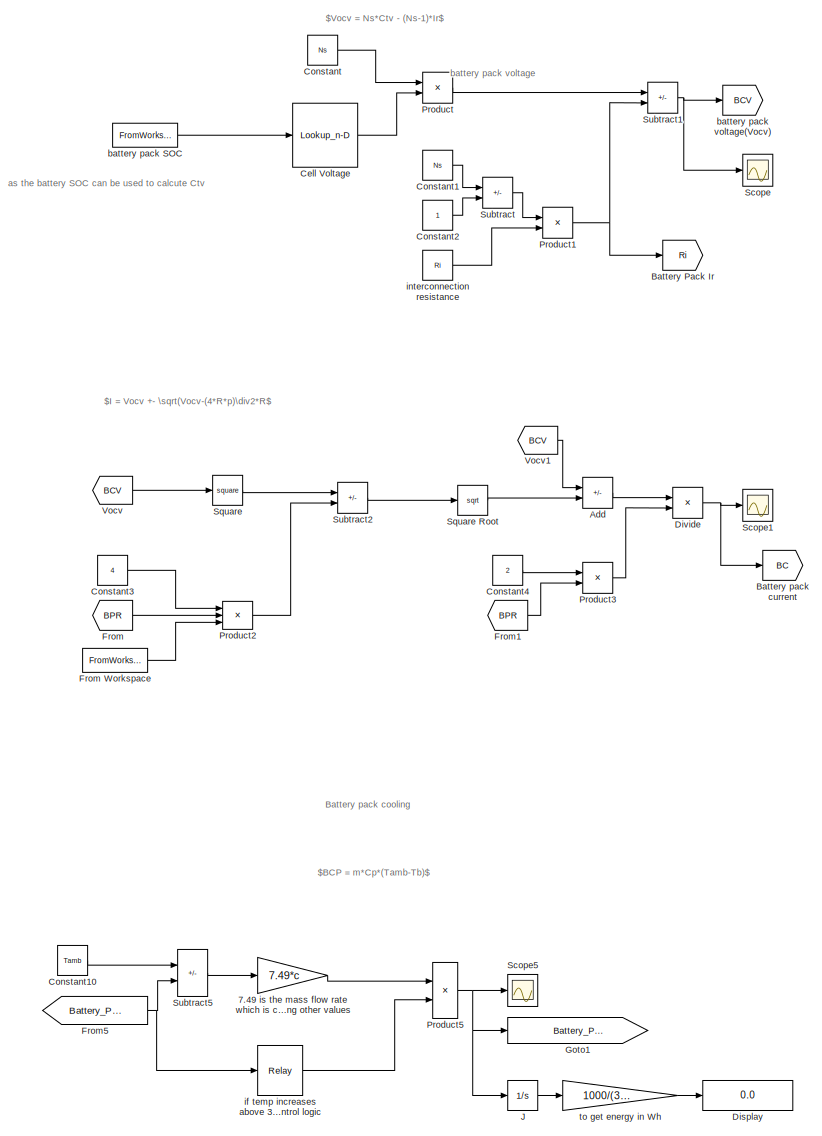
[diagram: root canvas - part 1/2, left side, full height]
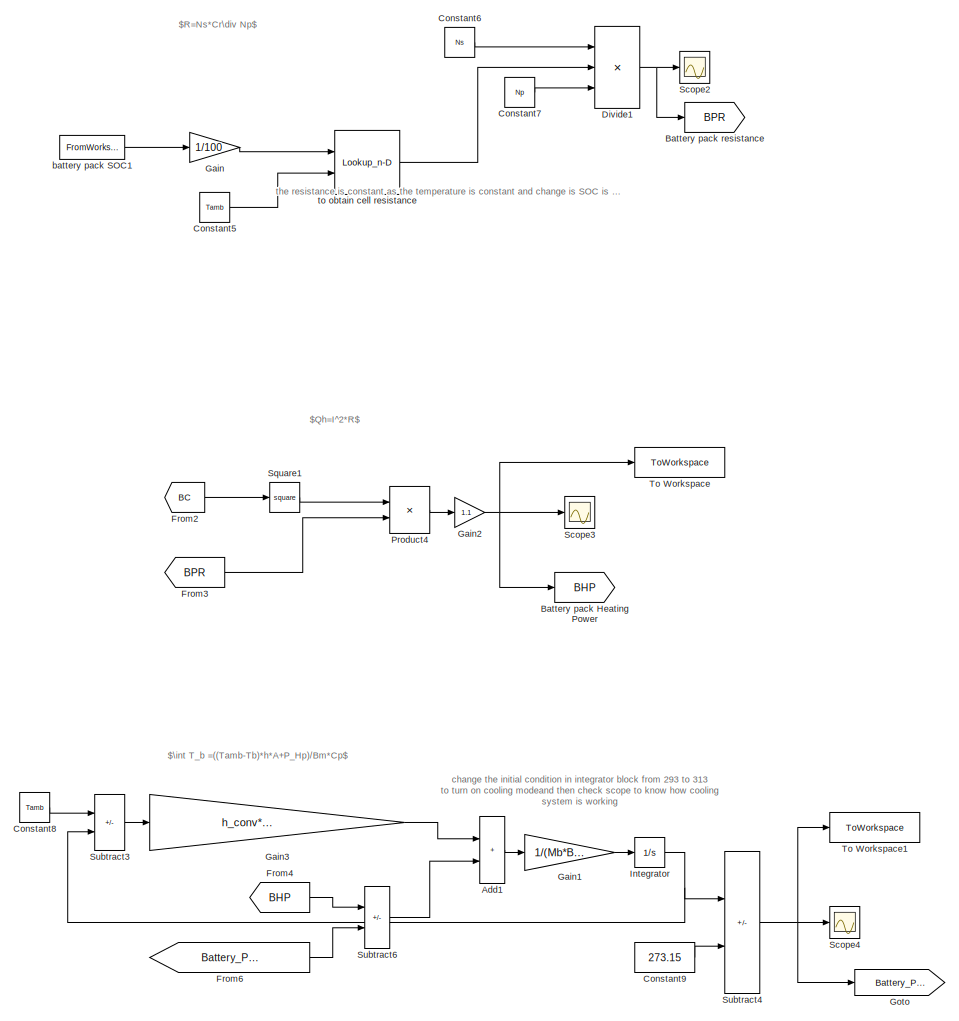
[diagram: root canvas - part 2/2, right side, full height]
MODEL slx_933a099b8f6e
KIND model
CONFIG AbsTol = auto
CONFIG EnableMultiTasking = off
CONFIG FixedStep = 1
CONFIG MaxStep = auto
CONFIG MinStep = auto
CONFIG RelTol = 1e-3
CONFIG SampleTimeConstraint = Unconstrained
CONFIG SolverName = FixedStepAuto
CONFIG StartTime = 0.0
CONFIG StopTime = 1400
BLOCK [Gain] 7.49 is the mass flow rate which is calculated by taking bcp =bhp*1.1 and putting other values
  Gain = 7.49*c
BLOCK [Sum] Add
  IconShape = rectangular
  Inputs = +-
  Ports = [2, 1]
BLOCK [Sum] Add1
  IconShape = rectangular
  Ports = [2, 1]
BLOCK [Goto] Battery Pack Ir
  GotoTag = Ri
  TagVisibility = global
BLOCK [Goto] Battery pack Heating Power
  GotoTag = BHP
  TagVisibility = global
BLOCK [Goto] Battery pack current
  GotoTag = BC
  TagVisibility = global
BLOCK [Goto] Battery pack resistance
  GotoTag = BPR
  TagVisibility = global
BLOCK [Lookup_n-D] Cell Voltage 
  BreakpointsForDimension1 = Cell_Voltage( :,2)
  InputPortMap = u0
  InternalRulePriority = Speed
  NumberOfTableDimensions = 1
  Ports = [1, 1]
  RndMeth = Simplest
  Table = Cell_Voltage( :,1)
BLOCK [Constant] Constant
  Value = Ns
BLOCK [Constant] Constant1
  Value = Ns
BLOCK [Constant] Constant10
  Value = Tamb
BLOCK [Constant] Constant2
BLOCK [Constant] Constant3
  Value = 4
BLOCK [Constant] Constant4
  Value = 2
BLOCK [Constant] Constant5
  Value = Tamb
BLOCK [Constant] Constant6
  Value = Ns
BLOCK [Constant] Constant7
  Value = Np
BLOCK [Constant] Constant8
  Value = Tamb
BLOCK [Constant] Constant9
  Value = 273.15
BLOCK [Display] Display
  Decimation = 1
  Ports = [1]
BLOCK [Product] Divide
  Inputs = */
  Ports = [2, 1]
BLOCK [Product] Divide1
  Inputs = **/
  Ports = [3, 1]
BLOCK [From] From
  GotoTag = BPR
  TagVisibility = global
BLOCK [FromWorkspace] From Workspace
  VariableName = Battery_Power
BLOCK [From] From1
  GotoTag = BPR
  TagVisibility = global
BLOCK [From] From2
  GotoTag = BC
  TagVisibility = global
BLOCK [From] From3
  GotoTag = BPR
  TagVisibility = global
BLOCK [From] From4
  GotoTag = BHP
  TagVisibility = global
BLOCK [From] From5
  GotoTag = Battery_Pack_temp
  TagVisibility = global
BLOCK [From] From6
  GotoTag = Battery_Pack_Cooling_Power
  TagVisibility = global
BLOCK [Gain] Gain
  Gain = 1/100
BLOCK [Gain] Gain1
  Gain = 1/(Mb*Bc)
BLOCK [Gain] Gain2
  Gain = 1.1
BLOCK [Gain] Gain3
  Gain = h_conv*(Cell_length*Cell_width*Ns*Np)
BLOCK [Goto] Goto
  GotoTag = Battery_Pack_temp
  TagVisibility = global
BLOCK [Goto] Goto1
  GotoTag = Battery_Pack_Cooling_Power
  TagVisibility = global
BLOCK [Integrator] Integrator
  InitialCondition = 313.17
  Ports = [1, 1]
BLOCK [Integrator] J
  Ports = [1, 1]
BLOCK [Product] Product
  Ports = [2, 1]
BLOCK [Product] Product1
  Ports = [2, 1]
BLOCK [Product] Product2
  Inputs = 3
  Ports = [3, 1]
BLOCK [Product] Product3
  Ports = [2, 1]
BLOCK [Product] Product4
  Ports = [2, 1]
BLOCK [Product] Product5
  Ports = [2, 1]
BLOCK [Scope] Scope
  Floating = off
  NumInputPorts = 1
  Ports = [1]
  ScopeSpecificationString = Simulink.scopes.TimeScopeBlockCfg('CurrentConfiguration', extmgr.ConfigurationSet(extmgr.Configuration('Core','General UI',true),extmgr.Configuration('Core','Source UI',true),extmgr.Configuration('Sources','WiredSimulink',true),extmgr.Configuration('Visuals','Time Domain',true,'SerializedDisplays',{struct('MinYLimReal','382.2695','MaxYLimReal','406.0295','YLabelReal','','MinYLimMag','382.2695','Ma...<+1335ch>
BLOCK [Scope] Scope1
  Floating = off
  NumInputPorts = 1
  Ports = [1]
  ScopeSpecificationString = Simulink.scopes.TimeScopeBlockCfg('CurrentConfiguration', extmgr.ConfigurationSet(extmgr.Configuration('Core','General UI',true),extmgr.Configuration('Core','Source UI',true),extmgr.Configuration('Sources','WiredSimulink',true,'DataLoggingVariableName','ScopeData1'),extmgr.Configuration('Visuals','Time Domain',true,'SerializedDisplays',{struct('MinYLimReal','-12.8996','MaxYLimReal','37.18602','YLa...<+1401ch>
BLOCK [Scope] Scope2
  Floating = off
  NumInputPorts = 1
  Ports = [1]
  ScopeSpecificationString = Simulink.scopes.TimeScopeBlockCfg('CurrentConfiguration', extmgr.ConfigurationSet(extmgr.Configuration('Core','General UI',true),extmgr.Configuration('Core','Source UI',true),extmgr.Configuration('Sources','WiredSimulink',true,'DataLoggingVariableName','ScopeData2'),extmgr.Configuration('Visuals','Time Domain',true,'SerializedDisplays',{struct('MinYLimReal','0.308','MaxYLimReal','0.508','YLabelRea...<+1348ch>
BLOCK [Scope] Scope3
  Floating = off
  NumInputPorts = 1
  Ports = [1]
  ScopeSpecificationString = Simulink.scopes.TimeScopeBlockCfg('CurrentConfiguration', extmgr.ConfigurationSet(extmgr.Configuration('Core','General UI',true),extmgr.Configuration('Core','Source UI',true),extmgr.Configuration('Sources','WiredSimulink',true,'DataLoggingVariableName','ScopeData3'),extmgr.Configuration('Visuals','Time Domain',true,'SerializedDisplays',{struct('MinYLimReal','-52.80484','MaxYLimReal','475.24353','Y...<+1407ch>
BLOCK [Scope] Scope4
  Floating = off
  NumInputPorts = 1
  Ports = [1]
  ScopeSpecificationString = Simulink.scopes.TimeScopeBlockCfg('CurrentConfiguration', extmgr.ConfigurationSet(extmgr.Configuration('Core','General UI',true),extmgr.Configuration('Core','Source UI',true),extmgr.Configuration('Sources','WiredSimulink',true,'DataLoggingVariableName','ScopeData4'),extmgr.Configuration('Visuals','Time Domain',true,'SerializedDisplays',{struct('MinYLimReal','15.35394','MaxYLimReal','42.76067','YLa...<+1404ch>
BLOCK [Scope] Scope5
  Floating = off
  NumInputPorts = 1
  Ports = [1]
  ScopeSpecificationString = Simulink.scopes.TimeScopeBlockCfg('CurrentConfiguration', extmgr.ConfigurationSet(extmgr.Configuration('Core','General UI',true),extmgr.Configuration('Core','Source UI',true),extmgr.Configuration('Sources','WiredSimulink',true,'DataLoggingVariableName','ScopeData1'),extmgr.Configuration('Visuals','Time Domain',true,'SerializedDisplays',{struct('MinYLimReal','-319940.49937','MaxYLimReal','2879464.4...<+1409ch>
BLOCK [Math] Square
  Operator = square
  Ports = [1, 1]
BLOCK [Sqrt] Square Root
BLOCK [Math] Square1
  Operator = square
  Ports = [1, 1]
BLOCK [Sum] Subtract
  IconShape = rectangular
  Inputs = +-
  Ports = [2, 1]
BLOCK [Sum] Subtract1
  IconShape = rectangular
  Inputs = +-
  Ports = [2, 1]
BLOCK [Sum] Subtract2
  IconShape = rectangular
  Inputs = +-
  Ports = [2, 1]
BLOCK [Sum] Subtract3
  IconShape = rectangular
  Inputs = +-
  Ports = [2, 1]
BLOCK [Sum] Subtract4
  IconShape = rectangular
  Inputs = +-
  Ports = [2, 1]
BLOCK [Sum] Subtract5
  IconShape = rectangular
  Inputs = +-
  Ports = [2, 1]
BLOCK [Sum] Subtract6
  IconShape = rectangular
  Inputs = +-
  Ports = [2, 1]
BLOCK [ToWorkspace] To Workspace
  FixptAsFi = on
  MaxDataPoints = inf
  Ports = [1]
  SampleTime = -1
  SaveFormat = Timeseries
  VariableName = BHP
BLOCK [ToWorkspace] To Workspace1
  FixptAsFi = on
  MaxDataPoints = inf
  Ports = [1]
  SampleTime = -1
  SaveFormat = Timeseries
  VariableName = BT
BLOCK [From] Vocv
  GotoTag = BCV
  TagVisibility = global
BLOCK [From] Vocv1
  GotoTag = BCV
  TagVisibility = global
BLOCK [FromWorkspace] battery pack SOC
  VariableName = BSOC
BLOCK [FromWorkspace] battery pack SOC1
  VariableName = BSOC
BLOCK [Goto] battery pack voltage(Vocv)
  GotoTag = BCV
  TagVisibility = global
BLOCK [Relay] if temp increases above 30 then cooling is turned on and output is 1 else 0 is send as output if temp is b//w 20 and 30 or lower than that it works as a control logic
  OffSwitchValue = 20
  OnSwitchValue = 30
BLOCK [Constant] interconnection resistance
  Value = Ri
BLOCK [Gain] to get energy in Wh
  Gain = 1000/(3.6*10^6)
BLOCK [Lookup_n-D] to obtain cell resistance 
  BreakpointsForDimension1 = SOC
  BreakpointsForDimension2 = T
  InputPortMap = u0,u1
  InternalRulePriority = Speed
  Ports = [2, 1]
  RndMeth = Simplest
  Table = Cr
ANNOTATION (root): change the initial condition in integrator block from 293 to 313 to turn on cooling modeand then check scope to know how cooling system is working
ANNOTATION (root): the resistance is constant as the temperature is constant and change is SOC is negligible
ANNOTATION (root): as the battery SOC can be used to calcute Ctv
ANNOTATION (root): Battery pack cooling
ANNOTATION (root): $R=Ns*Cr\div Np$
ANNOTATION (root): $Qh=I^2*R$
ANNOTATION (root): $I = Vocv +- \sqrt(Vocv-(4*R*p)\div2*R$
ANNOTATION (root): $Vocv = Ns*Ctv - (Ns-1)*Ir$
ANNOTATION (root): $\int T_b =((Tamb-Tb)*h*A+P_Hp)/Bm*Cp$
ANNOTATION (root): $BCP = m*Cp*(Tamb-Tb)$
ANNOTATION (root): battery pack voltage
LINE 7.49 is the mass flow rate which is calculated by taking bcp =bhp*1.1 and putting other values:1 -> Product5:1
LINE Add1:1 -> Gain1:1
LINE Add:1 -> Divide:1
LINE Cell Voltage :1 -> Product:2
LINE Constant10:1 -> Subtract5:1
LINE Constant1:1 -> Subtract:1
LINE Constant2:1 -> Subtract:2
LINE Constant3:1 -> Product2:1
LINE Constant4:1 -> Product3:1
LINE Constant5:1 -> to obtain cell resistance :2
LINE Constant6:1 -> Divide1:1
LINE Constant7:1 -> Divide1:3
LINE Constant8:1 -> Subtract3:1
LINE Constant9:1 -> Subtract4:2
LINE Constant:1 -> Product:1
NET Divide1:1 -> Battery pack resistance:1, Scope2:1
NET Divide:1 -> Battery pack current:1, Scope1:1
LINE From Workspace:1 -> Product2:3
LINE From1:1 -> Product3:2
LINE From2:1 -> Square1:1
LINE From3:1 -> Product4:2
LINE From4:1 -> Subtract6:1
NET From5:1 -> Subtract5:2, if temp increases above 30 then cooling is turned on and output is 1 else 0 is send as output if temp is b//w 20 and 30 or lower than that it works as a control logic:1
LINE From6:1 -> Subtract6:2
LINE From:1 -> Product2:2
LINE Gain1:1 -> Integrator:1
NET Gain2:1 -> Battery pack Heating Power:1, Scope3:1, To Workspace:1
LINE Gain3:1 -> Add1:1
LINE Gain:1 -> to obtain cell resistance :1
NET Integrator:1 -> Subtract3:2, Subtract4:1
LINE J:1 -> to get energy in Wh:1
NET Product1:1 -> Battery Pack Ir:1, Subtract1:2
LINE Product2:1 -> Subtract2:2
LINE Product3:1 -> Divide:2
LINE Product4:1 -> Gain2:1
NET Product5:1 -> Goto1:1, J:1, Scope5:1
LINE Product:1 -> Subtract1:1
LINE Square Root:1 -> Add:2
LINE Square1:1 -> Product4:1
LINE Square:1 -> Subtract2:1
NET Subtract1:1 -> Scope:1, battery pack voltage(Vocv):1
LINE Subtract2:1 -> Square Root:1
LINE Subtract3:1 -> Gain3:1
NET Subtract4:1 -> Goto:1, Scope4:1, To Workspace1:1
LINE Subtract5:1 -> 7.49 is the mass flow rate which is calculated by taking bcp =bhp*1.1 and putting other values:1
LINE Subtract6:1 -> Add1:2
LINE Subtract:1 -> Product1:1
LINE Vocv1:1 -> Add:1
LINE Vocv:1 -> Square:1
LINE battery pack SOC1:1 -> Gain:1
LINE battery pack SOC:1 -> Cell Voltage :1
LINE if temp increases above 30 then cooling is turned on and output is 1 else 0 is send as output if temp is b//w 20 and 30 or lower than that it works as a control logic:1 -> Product5:2
LINE interconnection resistance:1 -> Product1:2
LINE to get energy in Wh:1 -> Display:1
LINE to obtain cell resistance :1 -> Divide1:2
note: NET lines group one-source signal fan-out (src -> all destinations, sorted); 1:1 wires keep LINE
